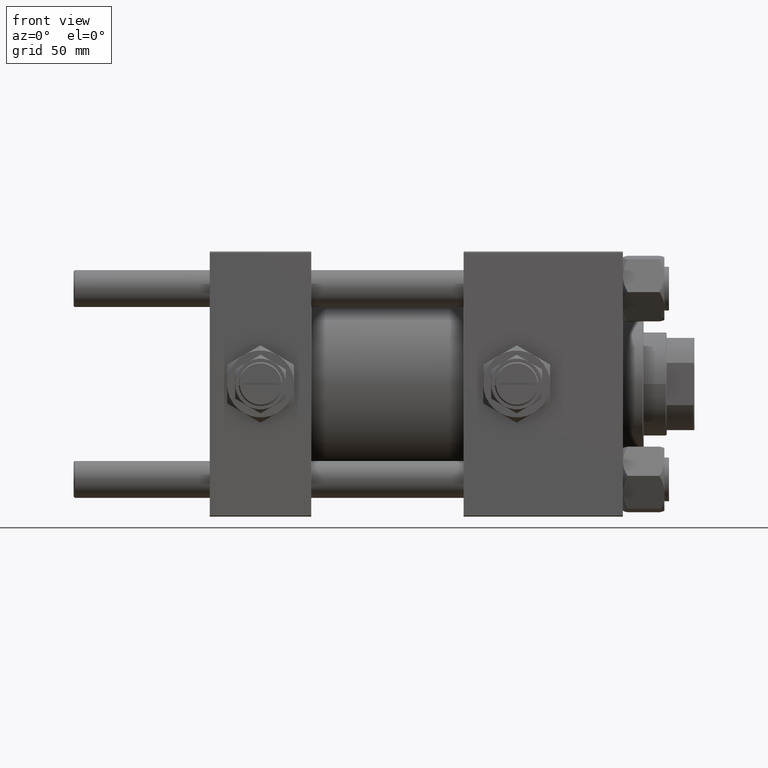
[diagram: clean part render]
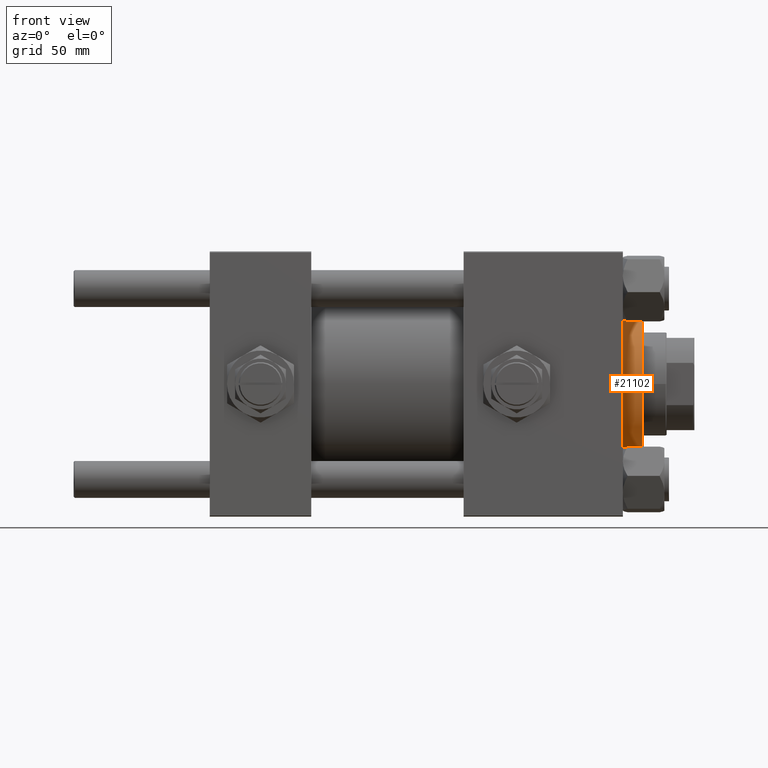
[diagram: same view with one face highlighted and labeled with its STEP entity id]
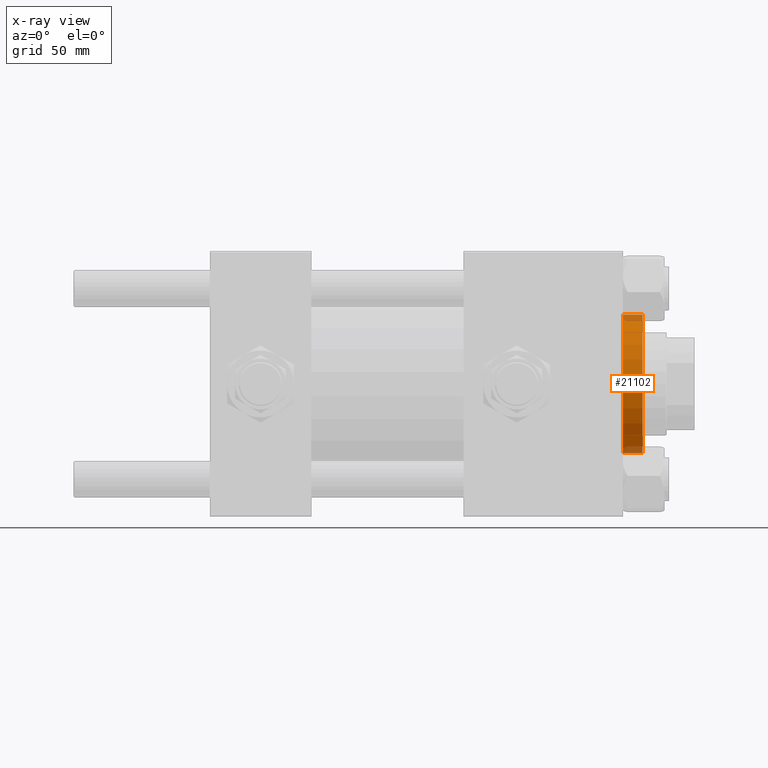
[diagram: x-ray of the same camera — body ghosted, the highlighted face saturated]
A machine part, front view. The second image highlights one B-rep face of the part: STEP entity #21102.
The next image is the same camera in x-ray: the body ghosted, the highlighted face saturated — about 9% of this face is hidden behind the body in this view.
In plain terms, the highlighted cylindrical surface (partial cylindrical patch) has radius 30 mm, axis along (-1, -0, 0).
Its self-contained STEP definition (entity closure, byte-faithful):
#1418 = AXIS2_PLACEMENT_3D ( 'NONE', #3042, #27934, #52069 ) ;
#2027 = DIRECTION ( 'NONE',  ( -0.000000000000000000, -0.000000000000000000, -1.000000000000000000 ) ) ;
#2289 = AXIS2_PLACEMENT_3D ( 'NONE', #27775, #26981, #51636 ) ;
#2710 = VECTOR ( 'NONE', #2027, 1000.000000000000000 ) ;
#3042 = CARTESIAN_POINT ( 'NONE',  ( 0.000000000000000000, 0.000000000000000000, 37.20000000000000284 ) ) ;
#3998 = CIRCLE ( 'NONE', #2289, 30.00000000000000000 ) ;
#5216 = LINE ( 'NONE', #38074, #2710 ) ;
#5241 = ORIENTED_EDGE ( 'NONE', *, *, #40061, .T. ) ;
#5624 = ORIENTED_EDGE ( 'NONE', *, *, #18928, .T. ) ;
#8002 = DIRECTION ( 'NONE',  ( -0.000000000000000000, -0.000000000000000000, -1.000000000000000000 ) ) ;
#8527 = DIRECTION ( 'NONE',  ( -1.000000000000000000, 0.000000000000000000, 0.000000000000000000 ) ) ;
#12011 = AXIS2_PLACEMENT_3D ( 'NONE', #16219, #51740, #8527 ) ;
#14204 = CARTESIAN_POINT ( 'NONE',  ( 30.00000000000000000, 3.673940397442059178E-15, 37.20000000000000284 ) ) ;
#16219 = CARTESIAN_POINT ( 'NONE',  ( 0.000000000000000000, 0.000000000000000000, 37.69999999999999574 ) ) ;
#18505 = ORIENTED_EDGE ( 'NONE', *, *, #20456, .F. ) ;
#18928 = EDGE_CURVE ( 'NONE', #32272, #39118, #24257, .T. ) ;
#20456 = EDGE_CURVE ( 'NONE', #32272, #27051, #5216, .T. ) ;
#21102 = ADVANCED_FACE ( 'NONE', ( #32395 ), #36373, .T. ) ;
#24257 = CIRCLE ( 'NONE', #1418, 30.00000000000000000 ) ;
#26981 = DIRECTION ( 'NONE',  ( 0.000000000000000000, 0.000000000000000000, 1.000000000000000000 ) ) ;
#27051 = VERTEX_POINT ( 'NONE', #40792 ) ;
#27775 = CARTESIAN_POINT ( 'NONE',  ( 0.000000000000000000, 0.000000000000000000, 28.69999999999999929 ) ) ;
#27934 = DIRECTION ( 'NONE',  ( 0.000000000000000000, 0.000000000000000000, -1.000000000000000000 ) ) ;
#31035 = CARTESIAN_POINT ( 'NONE',  ( -30.00000000000000000, 0.000000000000000000, 28.69999999999999929 ) ) ;
#32272 = VERTEX_POINT ( 'NONE', #14204 ) ;
#32395 = FACE_OUTER_BOUND ( 'NONE', #41318, .T. ) ;
#34475 = VECTOR ( 'NONE', #8002, 1000.000000000000000 ) ;
#36373 = CYLINDRICAL_SURFACE ( 'NONE', #12011, 30.00000000000000000 ) ;
#36789 = CARTESIAN_POINT ( 'NONE',  ( -30.00000000000000000, 0.000000000000000000, 37.20000000000000284 ) ) ;
#38074 = CARTESIAN_POINT ( 'NONE',  ( 30.00000000000000000, 3.673940397442059178E-15, 37.69999999999999574 ) ) ;
#38386 = ORIENTED_EDGE ( 'NONE', *, *, #41040, .T. ) ;
#39118 = VERTEX_POINT ( 'NONE', #36789 ) ;
#40061 = EDGE_CURVE ( 'NONE', #45918, #27051, #3998, .T. ) ;
#40792 = CARTESIAN_POINT ( 'NONE',  ( 30.00000000000000000, 3.673940397442059178E-15, 28.69999999999999929 ) ) ;
#41040 = EDGE_CURVE ( 'NONE', #39118, #45918, #41411, .T. ) ;
#41318 = EDGE_LOOP ( 'NONE', ( #18505, #5624, #38386, #5241 ) ) ;
#41411 = LINE ( 'NONE', #45120, #34475 ) ;
#45120 = CARTESIAN_POINT ( 'NONE',  ( -30.00000000000000000, 0.000000000000000000, 37.69999999999999574 ) ) ;
#45918 = VERTEX_POINT ( 'NONE', #31035 ) ;
#51636 = DIRECTION ( 'NONE',  ( 1.000000000000000000, 0.000000000000000000, 0.000000000000000000 ) ) ;
#51740 = DIRECTION ( 'NONE',  ( -0.000000000000000000, -0.000000000000000000, -1.000000000000000000 ) ) ;
#52069 = DIRECTION ( 'NONE',  ( 1.000000000000000000, 0.000000000000000000, 0.000000000000000000 ) ) ;